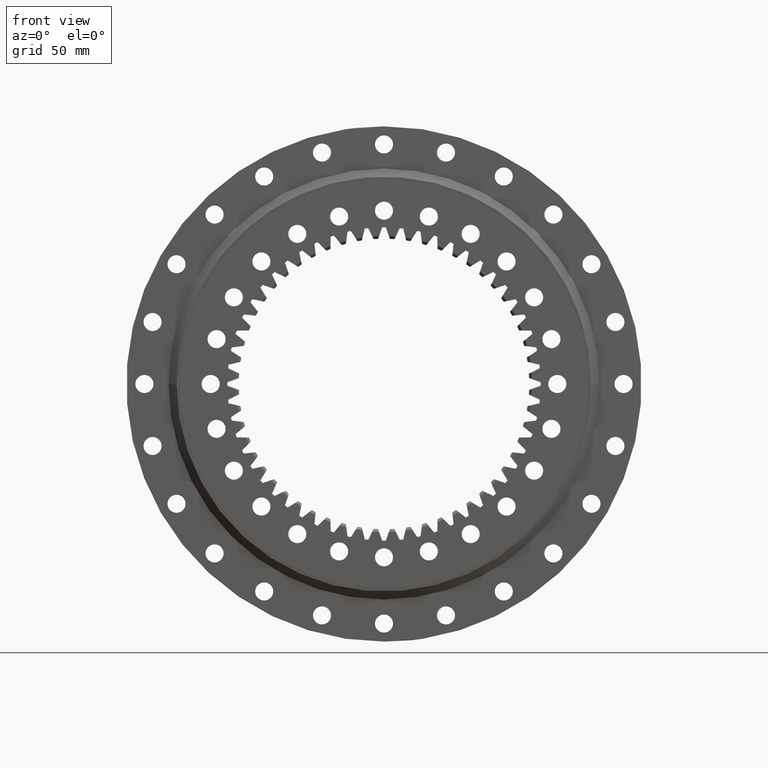
[diagram: clean part render]
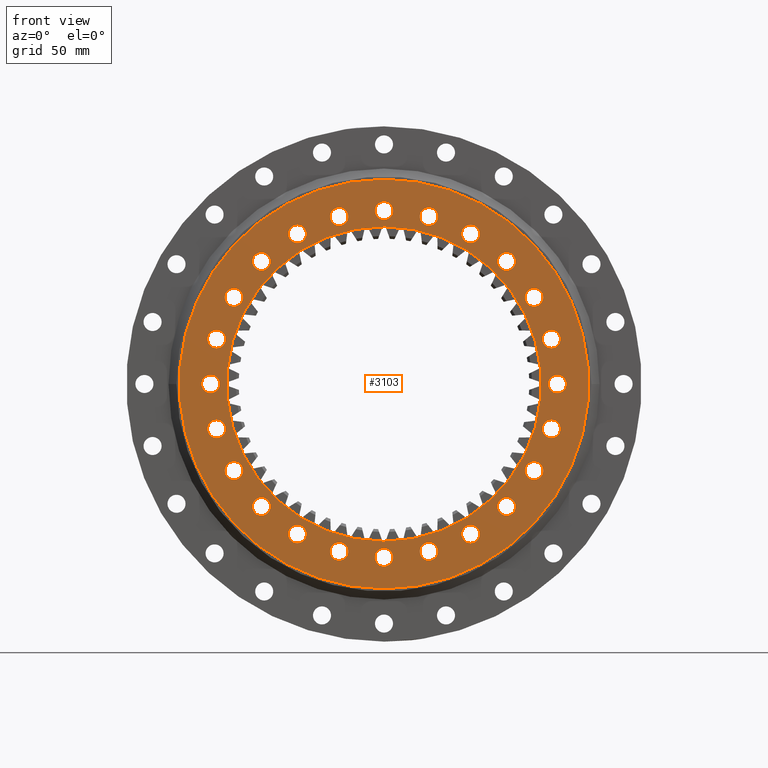
[diagram: same view with one face highlighted and labeled with its STEP entity id]
A machine part, front view. The second image highlights one B-rep face of the part: STEP entity #3103.
In plain terms, the highlighted planar face has unit normal (0, 1, -0).
Its self-contained STEP definition (entity closure, byte-faithful):
#16 = EDGE_LOOP ( 'NONE', ( #7282, #10143 ) ) ;
#21 = CIRCLE ( 'NONE', #3753, 6.749999999999996400 ) ;
#61 = EDGE_CURVE ( 'NONE', #10788, #13810, #14495, .T. ) ;
#133 = FACE_BOUND ( 'NONE', #3878, .T. ) ;
#212 = CIRCLE ( 'NONE', #14128, 6.750000000000006200 ) ;
#263 = CARTESIAN_POINT ( 'NONE',  ( 112.1502897900840300, -27.49999999999999600, 64.75000000000136400 ) ) ;
#291 = DIRECTION ( 'NONE',  ( -7.914688832368751900E-017, -1.000000000000000000, 6.617654413443253200E-017 ) ) ;
#323 = AXIS2_PLACEMENT_3D ( 'NONE', #11162, #3988, #13368 ) ;
#340 = CARTESIAN_POINT ( 'NONE',  ( -1.867010835527113100E-012, -27.49999999999998600, 129.5000000000000000 ) ) ;
#365 = EDGE_CURVE ( 'NONE', #13395, #9055, #8374, .T. ) ;
#374 = DIRECTION ( 'NONE',  ( 0.5000000000000003300, 0.0000000000000000000, 0.8660254037844384900 ) ) ;
#381 = CARTESIAN_POINT ( 'NONE',  ( 6.315972820090652200E-015, -27.49999999999998200, 152.9875000000000100 ) ) ;
#387 = VERTEX_POINT ( 'NONE', #12761 ) ;
#427 = EDGE_LOOP ( 'NONE', ( #2825, #1704 ) ) ;
#434 = DIRECTION ( 'NONE',  ( 5.551115123123066100E-017, 0.0000000000000000000, 1.000000000000000000 ) ) ;
#509 = CIRCLE ( 'NONE', #4277, 6.750000000000000900 ) ;
#611 = CARTESIAN_POINT ( 'NONE',  ( -112.1502897900849800, -27.49999999999997500, 64.74999999999970200 ) ) ;
#636 = VERTEX_POINT ( 'NONE', #799 ) ;
#673 = ORIENTED_EDGE ( 'NONE', *, *, #2461, .F. ) ;
#674 = DIRECTION ( 'NONE',  ( -0.8660254037844323800, 0.0000000000000000000, 0.5000000000000106600 ) ) ;
#712 = CARTESIAN_POINT ( 'NONE',  ( 64.74999999999850800, -27.49999999999998900, 105.4002897900856500 ) ) ;
#723 = CARTESIAN_POINT ( 'NONE',  ( -1.867010835527113100E-012, -27.49999999999998600, 129.5000000000000000 ) ) ;
#758 = CARTESIAN_POINT ( 'NONE',  ( -129.5000000000000000, -27.49999999999998200, -5.065739409939572700E-013 ) ) ;
#766 = CARTESIAN_POINT ( 'NONE',  ( 64.75000000000096600, -27.50000000000000400, -105.4002897900842600 ) ) ;
#799 = CARTESIAN_POINT ( 'NONE',  ( 125.0873945044339900, -27.50000000000000000, 26.76706634077788400 ) ) ;
#801 = ORIENTED_EDGE ( 'NONE', *, *, #3318, .T. ) ;
#804 = FACE_BOUND ( 'NONE', #11406, .T. ) ;
#809 = CARTESIAN_POINT ( 'NONE',  ( -112.1502897900844700, -27.49999999999998600, -58.00000000000056800 ) ) ;
#825 = AXIS2_PLACEMENT_3D ( 'NONE', #1667, #9325, #8384 ) ;
#875 = VERTEX_POINT ( 'NONE', #1010 ) ;
#919 = VERTEX_POINT ( 'NONE', #5189 ) ;
#1010 = CARTESIAN_POINT ( 'NONE',  ( -125.0873945044342000, -27.49999999999998600, -26.76706634077700300 ) ) ;
#1029 = AXIS2_PLACEMENT_3D ( 'NONE', #13795, #2947, #13224 ) ;
#1051 = EDGE_LOOP ( 'NONE', ( #8389, #4776 ) ) ;
#1124 = CIRCLE ( 'NONE', #13177, 6.750000000000005300 ) ;
#1133 = AXIS2_PLACEMENT_3D ( 'NONE', #4836, #4795, #12648 ) ;
#1158 = EDGE_CURVE ( 'NONE', #14050, #16801, #9244, .T. ) ;
#1180 = CARTESIAN_POINT ( 'NONE',  ( -64.74999999999928900, -27.49999999999999600, -112.1502897900852400 ) ) ;
#1219 = FACE_BOUND ( 'NONE', #12450, .T. ) ;
#1220 = DIRECTION ( 'NONE',  ( -7.914688832368751900E-017, -1.000000000000000000, 6.617654413443253200E-017 ) ) ;
#1232 = FACE_BOUND ( 'NONE', #2242, .T. ) ;
#1235 = FACE_BOUND ( 'NONE', #8619, .T. ) ;
#1242 = CARTESIAN_POINT ( 'NONE',  ( 9.605195951670322800E-013, -27.50000000000000000, -122.7500000000000000 ) ) ;
#1300 = VERTEX_POINT ( 'NONE', #7236 ) ;
#1381 = CARTESIAN_POINT ( 'NONE',  ( -125.0873945044344600, -27.49999999999997900, 26.76706634077601900 ) ) ;
#1382 = CIRCLE ( 'NONE', #3484, 6.750000000000006200 ) ;
#1390 = EDGE_CURVE ( 'NONE', #13701, #919, #13306, .T. ) ;
#1400 = CARTESIAN_POINT ( 'NONE',  ( 64.75000000000096600, -27.50000000000000400, -112.1502897900842600 ) ) ;
#1437 = FACE_BOUND ( 'NONE', #16276, .T. ) ;
#1451 = ORIENTED_EDGE ( 'NONE', *, *, #3627, .F. ) ;
#1475 = CIRCLE ( 'NONE', #14672, 6.750000000000005300 ) ;
#1476 = CARTESIAN_POINT ( 'NONE',  ( -33.51706634077657300, -27.49999999999998200, 131.8373945044343100 ) ) ;
#1508 = DIRECTION ( 'NONE',  ( -7.914688832368751900E-017, -1.000000000000000000, 6.617654413443253200E-017 ) ) ;
#1520 = CIRCLE ( 'NONE', #2773, 6.750000000000010700 ) ;
#1562 = AXIS2_PLACEMENT_3D ( 'NONE', #11358, #11294, #11233 ) ;
#1574 = FACE_BOUND ( 'NONE', #17077, .T. ) ;
#1575 = EDGE_LOOP ( 'NONE', ( #2508, #15514 ) ) ;
#1606 = FACE_BOUND ( 'NONE', #5129, .T. ) ;
#1621 = FACE_BOUND ( 'NONE', #12247, .T. ) ;
#1635 = FACE_BOUND ( 'NONE', #11949, .T. ) ;
#1667 = CARTESIAN_POINT ( 'NONE',  ( -33.51706634077657300, -27.49999999999998200, 125.0873945044343100 ) ) ;
#1698 = EDGE_CURVE ( 'NONE', #14318, #13509, #1382, .T. ) ;
#1704 = ORIENTED_EDGE ( 'NONE', *, *, #4379, .F. ) ;
#1764 = CARTESIAN_POINT ( 'NONE',  ( 64.74999999999850800, -27.49999999999998900, 112.1502897900856700 ) ) ;
#1768 = DIRECTION ( 'NONE',  ( -7.914688832368751900E-017, -1.000000000000000000, 6.617654413443253200E-017 ) ) ;
#1793 = DIRECTION ( 'NONE',  ( -7.914688832368751900E-017, -1.000000000000000000, 6.617654413443251900E-017 ) ) ;
#1799 = EDGE_CURVE ( 'NONE', #2644, #875, #12358, .T. ) ;
#1801 = AXIS2_PLACEMENT_3D ( 'NONE', #2539, #11291, #9648 ) ;
#1826 = DIRECTION ( 'NONE',  ( -0.4999999999999883400, 0.0000000000000000000, 0.8660254037844452600 ) ) ;
#1841 = FACE_BOUND ( 'NONE', #2375, .T. ) ;
#1852 = ORIENTED_EDGE ( 'NONE', *, *, #1698, .F. ) ;
#1872 = CARTESIAN_POINT ( 'NONE',  ( -91.57032816365737900, -27.49999999999998900, -91.57032816365841700 ) ) ;
#1873 = EDGE_CURVE ( 'NONE', #15023, #16355, #3602, .T. ) ;
#1911 = CARTESIAN_POINT ( 'NONE',  ( 33.51706634077744700, -27.50000000000000400, -118.3373945044340900 ) ) ;
#1921 = DIRECTION ( 'NONE',  ( -5.551115123125783900E-017, -6.617654413443253200E-017, -1.000000000000000000 ) ) ;
#1967 = AXIS2_PLACEMENT_3D ( 'NONE', #3493, #3571, #8070 ) ;
#1985 = FACE_BOUND ( 'NONE', #8158, .T. ) ;
#1996 = CIRCLE ( 'NONE', #11176, 6.750000000000006200 ) ;
#1997 = FACE_BOUND ( 'NONE', #12055, .T. ) ;
#2018 = DIRECTION ( 'NONE',  ( -0.7071067811865536800, 0.0000000000000000000, -0.7071067811865413600 ) ) ;
#2033 = EDGE_CURVE ( 'NONE', #1300, #11527, #3352, .T. ) ;
#2045 = DIRECTION ( 'NONE',  ( -7.914688832368751900E-017, -1.000000000000000000, 6.617654413443251900E-017 ) ) ;
#2050 = FACE_BOUND ( 'NONE', #16, .T. ) ;
#2156 = CARTESIAN_POINT ( 'NONE',  ( 125.0873945044347100, -27.50000000000000700, -33.51706634077515900 ) ) ;
#2174 = CARTESIAN_POINT ( 'NONE',  ( 112.1502897900840300, -27.49999999999999600, 71.50000000000136400 ) ) ;
#2187 = EDGE_CURVE ( 'NONE', #13551, #7697, #13191, .T. ) ;
#2189 = DIRECTION ( 'NONE',  ( 7.914688832368751900E-017, 1.000000000000000000, -6.617654413443253200E-017 ) ) ;
#2237 = EDGE_CURVE ( 'NONE', #10594, #5833, #6576, .T. ) ;
#2238 = FACE_BOUND ( 'NONE', #15553, .T. ) ;
#2242 = EDGE_LOOP ( 'NONE', ( #10924, #1451 ) ) ;
#2278 = CARTESIAN_POINT ( 'NONE',  ( -91.57032816365810400, -27.49999999999998200, 98.32032816365772000 ) ) ;
#2283 = EDGE_LOOP ( 'NONE', ( #11553, #673 ) ) ;
#2293 = CARTESIAN_POINT ( 'NONE',  ( -2.289083236774638300E-014, -27.50000000000000000, -117.5000000000000000 ) ) ;
#2344 = EDGE_CURVE ( 'NONE', #4325, #6566, #10047, .T. ) ;
#2350 = CIRCLE ( 'NONE', #9687, 6.749999999999992900 ) ;
#2375 = EDGE_LOOP ( 'NONE', ( #14757, #11989 ) ) ;
#2421 = FACE_BOUND ( 'NONE', #6764, .T. ) ;
#2450 = AXIS2_PLACEMENT_3D ( 'NONE', #381, #10149, #1921 ) ;
#2461 = EDGE_CURVE ( 'NONE', #5833, #10594, #7335, .T. ) ;
#2476 = ORIENTED_EDGE ( 'NONE', *, *, #10303, .F. ) ;
#2508 = ORIENTED_EDGE ( 'NONE', *, *, #16168, .F. ) ;
#2539 = CARTESIAN_POINT ( 'NONE',  ( 112.1502897900840300, -27.49999999999999600, 64.75000000000136400 ) ) ;
#2600 = EDGE_CURVE ( 'NONE', #13509, #14318, #212, .T. ) ;
#2609 = FACE_BOUND ( 'NONE', #1575, .T. ) ;
#2633 = VERTEX_POINT ( 'NONE', #15555 ) ;
#2639 = FACE_BOUND ( 'NONE', #6616, .T. ) ;
#2644 = VERTEX_POINT ( 'NONE', #8013 ) ;
#2709 = VERTEX_POINT ( 'NONE', #2278 ) ;
#2773 = AXIS2_PLACEMENT_3D ( 'NONE', #13053, #11398, #3417 ) ;
#2821 = FACE_BOUND ( 'NONE', #16986, .T. ) ;
#2825 = ORIENTED_EDGE ( 'NONE', *, *, #15468, .F. ) ;
#2841 = DIRECTION ( 'NONE',  ( -7.914688832368751900E-017, -1.000000000000000000, 6.617654413443253200E-017 ) ) ;
#2847 = EDGE_CURVE ( 'NONE', #16355, #15023, #9506, .T. ) ;
#2855 = FACE_BOUND ( 'NONE', #6030, .T. ) ;
#2868 = AXIS2_PLACEMENT_3D ( 'NONE', #13054, #12993, #13103 ) ;
#2947 = DIRECTION ( 'NONE',  ( -7.914688832368751900E-017, -1.000000000000000000, 6.617654413443253200E-017 ) ) ;
#2995 = AXIS2_PLACEMENT_3D ( 'NONE', #4658, #6434, #8379 ) ;
#3031 = ORIENTED_EDGE ( 'NONE', *, *, #13230, .F. ) ;
#3046 = FACE_BOUND ( 'NONE', #15910, .T. ) ;
#3080 = DIRECTION ( 'NONE',  ( -7.914688832368751900E-017, -1.000000000000000000, 6.617654413443253200E-017 ) ) ;
#3103 = ADVANCED_FACE ( 'NONE', ( #804, #133, #1235, #1232, #1219, #1621, #1606, #1574, #1437, #1997, #1985, #1841, #1635, #2609, #2421, #2238, #2050, #3046, #2855, #2821, #2639, #3594, #3579, #3445, #3233, #4016 ), #17131, .F. ) ;
#3180 = DIRECTION ( 'NONE',  ( 0.7071067811865434600, 0.0000000000000000000, -0.7071067811865515700 ) ) ;
#3233 = FACE_BOUND ( 'NONE', #8748, .T. ) ;
#3240 = CARTESIAN_POINT ( 'NONE',  ( 6.315972820090652200E-015, -27.49999999999998200, 152.9875000000000100 ) ) ;
#3318 = EDGE_CURVE ( 'NONE', #14499, #13909, #10035, .T. ) ;
#3352 = CIRCLE ( 'NONE', #7624, 6.750000000000006200 ) ;
#3410 = DIRECTION ( 'NONE',  ( 0.2588190451025146300, 0.0000000000000000000, -0.9659258262890698700 ) ) ;
#3417 = DIRECTION ( 'NONE',  ( -0.9659258262890656500, 0.0000000000000000000, 0.2588190451025310100 ) ) ;
#3429 = VERTEX_POINT ( 'NONE', #5451 ) ;
#3436 = CARTESIAN_POINT ( 'NONE',  ( 125.0873945044339900, -27.50000000000000000, 33.51706634077788000 ) ) ;
#3445 = FACE_BOUND ( 'NONE', #16720, .T. ) ;
#3484 = AXIS2_PLACEMENT_3D ( 'NONE', #9190, #15788, #4628 ) ;
#3493 = CARTESIAN_POINT ( 'NONE',  ( 91.57032816365675400, -27.49999999999999600, 91.57032816365908400 ) ) ;
#3530 = ORIENTED_EDGE ( 'NONE', *, *, #2847, .F. ) ;
#3571 = DIRECTION ( 'NONE',  ( -7.914688832368751900E-017, -1.000000000000000000, 6.617654413443253200E-017 ) ) ;
#3579 = FACE_BOUND ( 'NONE', #427, .T. ) ;
#3594 = FACE_BOUND ( 'NONE', #2283, .T. ) ;
#3602 = CIRCLE ( 'NONE', #14238, 6.749999999999992900 ) ;
#3627 = EDGE_CURVE ( 'NONE', #12312, #4428, #14523, .T. ) ;
#3709 = DIRECTION ( 'NONE',  ( 0.8660254037844362700, 0.0000000000000000000, -0.5000000000000043300 ) ) ;
#3722 = CARTESIAN_POINT ( 'NONE',  ( 125.0873945044339900, -27.50000000000000000, 40.26706634077788000 ) ) ;
#3753 = AXIS2_PLACEMENT_3D ( 'NONE', #15671, #16841, #12933 ) ;
#3783 = AXIS2_PLACEMENT_3D ( 'NONE', #611, #1220, #674 ) ;
#3878 = EDGE_LOOP ( 'NONE', ( #10873, #16391 ) ) ;
#3930 = CARTESIAN_POINT ( 'NONE',  ( 112.1502897900854500, -27.50000000000000700, -64.74999999999890600 ) ) ;
#3988 = DIRECTION ( 'NONE',  ( -7.914688832368751900E-017, -1.000000000000000000, 6.617654413443253200E-017 ) ) ;
#4016 = FACE_OUTER_BOUND ( 'NONE', #1051, .T. ) ;
#4070 = CARTESIAN_POINT ( 'NONE',  ( 112.1502897900854500, -27.50000000000000700, -71.49999999999890600 ) ) ;
#4093 = CARTESIAN_POINT ( 'NONE',  ( 64.75000000000096600, -27.50000000000000400, -112.1502897900842600 ) ) ;
#4094 = VERTEX_POINT ( 'NONE', #10075 ) ;
#4120 = CARTESIAN_POINT ( 'NONE',  ( -91.57032816365737900, -27.49999999999998900, -98.32032816365841700 ) ) ;
#4138 = EDGE_CURVE ( 'NONE', #10736, #11517, #6906, .T. ) ;
#4159 = CARTESIAN_POINT ( 'NONE',  ( -64.74999999999928900, -27.49999999999999600, -112.1502897900852400 ) ) ;
#4223 = ORIENTED_EDGE ( 'NONE', *, *, #2033, .F. ) ;
#4250 = CIRCLE ( 'NONE', #6975, 6.750000000000000900 ) ;
#4277 = AXIS2_PLACEMENT_3D ( 'NONE', #13441, #13698, #13460 ) ;
#4325 = VERTEX_POINT ( 'NONE', #10768 ) ;
#4363 = AXIS2_PLACEMENT_3D ( 'NONE', #14043, #5429, #3180 ) ;
#4379 = EDGE_CURVE ( 'NONE', #4094, #12728, #11087, .T. ) ;
#4409 = DIRECTION ( 'NONE',  ( -0.5000000000000066600, 0.0000000000000000000, -0.8660254037844348200 ) ) ;
#4428 = VERTEX_POINT ( 'NONE', #2174 ) ;
#4493 = CIRCLE ( 'NONE', #14002, 6.750000000000005300 ) ;
#4494 = EDGE_CURVE ( 'NONE', #5027, #7511, #4250, .T. ) ;
#4526 = DIRECTION ( 'NONE',  ( -7.914688832368751900E-017, -1.000000000000000000, 6.617654413443253200E-017 ) ) ;
#4546 = CIRCLE ( 'NONE', #2995, 117.5000000000000000 ) ;
#4547 = DIRECTION ( 'NONE',  ( -7.914688832368751900E-017, -1.000000000000000000, 6.617654413443253200E-017 ) ) ;
#4608 = DIRECTION ( 'NONE',  ( -7.914688832368753200E-017, -1.000000000000000000, 6.617654413443253200E-017 ) ) ;
#4628 = DIRECTION ( 'NONE',  ( -0.2588190451025281200, 0.0000000000000000000, -0.9659258262890663100 ) ) ;
#4651 = VERTEX_POINT ( 'NONE', #11183 ) ;
#4658 = CARTESIAN_POINT ( 'NONE',  ( -2.176539428901406400E-015, -27.49999999999999300, 2.569797720291901100E-015 ) ) ;
#4776 = ORIENTED_EDGE ( 'NONE', *, *, #13771, .T. ) ;
#4795 = DIRECTION ( 'NONE',  ( -7.914688832368751900E-017, -1.000000000000000000, 6.617654413443253200E-017 ) ) ;
#4836 = CARTESIAN_POINT ( 'NONE',  ( -64.75000000000018500, -27.49999999999998200, 112.1502897900847100 ) ) ;
#4951 = EDGE_CURVE ( 'NONE', #387, #16152, #12370, .T. ) ;
#4976 = AXIS2_PLACEMENT_3D ( 'NONE', #2156, #8330, #12239 ) ;
#5008 = CARTESIAN_POINT ( 'NONE',  ( -1.866636135256302500E-012, -27.49999999999998600, 136.2500000000000000 ) ) ;
#5027 = VERTEX_POINT ( 'NONE', #13811 ) ;
#5077 = CARTESIAN_POINT ( 'NONE',  ( 91.57032816365874300, -27.50000000000000400, -91.57032816365706700 ) ) ;
#5129 = EDGE_LOOP ( 'NONE', ( #16867, #14293 ) ) ;
#5131 = DIRECTION ( 'NONE',  ( -7.914688832368751900E-017, -1.000000000000000000, 6.617654413443253200E-017 ) ) ;
#5153 = AXIS2_PLACEMENT_3D ( 'NONE', #9673, #4547, #1826 ) ;
#5189 = CARTESIAN_POINT ( 'NONE',  ( 9.589435580359859200E-013, -27.50000000000000000, -136.2500000000000000 ) ) ;
#5208 = CIRCLE ( 'NONE', #9996, 6.750000000000006200 ) ;
#5363 = DIRECTION ( 'NONE',  ( 0.7071067811865434600, 0.0000000000000000000, -0.7071067811865515700 ) ) ;
#5404 = CARTESIAN_POINT ( 'NONE',  ( 33.51706634077744700, -27.50000000000000400, -125.0873945044341000 ) ) ;
#5429 = DIRECTION ( 'NONE',  ( -7.914688832368751900E-017, -1.000000000000000000, 6.617654413443253200E-017 ) ) ;
#5451 = CARTESIAN_POINT ( 'NONE',  ( -91.57032816365737900, -27.49999999999998900, -84.82032816365840200 ) ) ;
#5481 = AXIS2_PLACEMENT_3D ( 'NONE', #9957, #9930, #9912 ) ;
#5552 = DIRECTION ( 'NONE',  ( 0.4999999999999947800, 0.0000000000000000000, -0.8660254037844417100 ) ) ;
#5555 = DIRECTION ( 'NONE',  ( -0.8660254037844323800, 0.0000000000000000000, 0.5000000000000106600 ) ) ;
#5576 = DIRECTION ( 'NONE',  ( -0.2588190451025281200, 0.0000000000000000000, -0.9659258262890663100 ) ) ;
#5617 = CIRCLE ( 'NONE', #1562, 6.750000000000001800 ) ;
#5647 = CIRCLE ( 'NONE', #13649, 6.749999999999995600 ) ;
#5672 = VERTEX_POINT ( 'NONE', #15042 ) ;
#5833 = VERTEX_POINT ( 'NONE', #9154 ) ;
#5947 = EDGE_CURVE ( 'NONE', #13810, #10788, #2350, .T. ) ;
#6027 = AXIS2_PLACEMENT_3D ( 'NONE', #1180, #16682, #16838 ) ;
#6030 = EDGE_LOOP ( 'NONE', ( #13618, #16048 ) ) ;
#6331 = VERTEX_POINT ( 'NONE', #10264 ) ;
#6348 = DIRECTION ( 'NONE',  ( -7.914688832368751900E-017, -1.000000000000000000, 6.617654413443253200E-017 ) ) ;
#6371 = EDGE_CURVE ( 'NONE', #2633, #11313, #11264, .T. ) ;
#6380 = DIRECTION ( 'NONE',  ( 0.5000000000000003300, 0.0000000000000000000, 0.8660254037844384900 ) ) ;
#6405 = CARTESIAN_POINT ( 'NONE',  ( -112.1502897900844700, -27.49999999999998600, -71.50000000000058300 ) ) ;
#6434 = DIRECTION ( 'NONE',  ( 7.914688832368751900E-017, 1.000000000000000000, -6.617654413443253200E-017 ) ) ;
#6436 = VERTEX_POINT ( 'NONE', #1381 ) ;
#6552 = ORIENTED_EDGE ( 'NONE', *, *, #12050, .F. ) ;
#6566 = VERTEX_POINT ( 'NONE', #8136 ) ;
#6576 = CIRCLE ( 'NONE', #1133, 6.749999999999996400 ) ;
#6613 = DIRECTION ( 'NONE',  ( 0.7071067811865485700, 0.0000000000000000000, 0.7071067811865464600 ) ) ;
#6616 = EDGE_LOOP ( 'NONE', ( #13913, #11224 ) ) ;
#6627 = AXIS2_PLACEMENT_3D ( 'NONE', #10245, #10985, #15186 ) ;
#6643 = EDGE_CURVE ( 'NONE', #7864, #5672, #11024, .T. ) ;
#6754 = DIRECTION ( 'NONE',  ( -7.914688832368751900E-017, -1.000000000000000000, 6.617654413443253200E-017 ) ) ;
#6764 = EDGE_LOOP ( 'NONE', ( #8068, #6552 ) ) ;
#6795 = AXIS2_PLACEMENT_3D ( 'NONE', #8627, #8763, #8715 ) ;
#6829 = EDGE_CURVE ( 'NONE', #3429, #12649, #1124, .T. ) ;
#6870 = CIRCLE ( 'NONE', #8978, 6.750000000000005300 ) ;
#6906 = CIRCLE ( 'NONE', #16641, 152.9875000000000100 ) ;
#6951 = EDGE_CURVE ( 'NONE', #12516, #8277, #13126, .T. ) ;
#6959 = CARTESIAN_POINT ( 'NONE',  ( -112.1502897900849800, -27.49999999999997500, 57.99999999999969400 ) ) ;
#6975 = AXIS2_PLACEMENT_3D ( 'NONE', #13655, #10830, #5555 ) ;
#7004 = ORIENTED_EDGE ( 'NONE', *, *, #6371, .F. ) ;
#7154 = CARTESIAN_POINT ( 'NONE',  ( 91.57032816365675400, -27.49999999999999600, 91.57032816365908400 ) ) ;
#7236 = CARTESIAN_POINT ( 'NONE',  ( -129.5000000000000000, -27.49999999999998200, 6.749999999999494600 ) ) ;
#7282 = ORIENTED_EDGE ( 'NONE', *, *, #12126, .F. ) ;
#7335 = CIRCLE ( 'NONE', #5153, 6.749999999999996400 ) ;
#7435 = CIRCLE ( 'NONE', #16656, 6.750000000000001800 ) ;
#7511 = VERTEX_POINT ( 'NONE', #6959 ) ;
#7518 = CARTESIAN_POINT ( 'NONE',  ( 33.51706634077744700, -27.50000000000000400, -125.0873945044341000 ) ) ;
#7532 = CARTESIAN_POINT ( 'NONE',  ( -129.5000000000000000, -27.49999999999998200, -6.750000000000507100 ) ) ;
#7624 = AXIS2_PLACEMENT_3D ( 'NONE', #758, #6348, #8236 ) ;
#7697 = VERTEX_POINT ( 'NONE', #5008 ) ;
#7732 = CIRCLE ( 'NONE', #16638, 6.750000000000005300 ) ;
#7751 = CARTESIAN_POINT ( 'NONE',  ( -2.920872834774790900E-014, -27.50000000000000400, -152.9875000000000100 ) ) ;
#7777 = CIRCLE ( 'NONE', #4363, 6.750000000000005300 ) ;
#7811 = ORIENTED_EDGE ( 'NONE', *, *, #61, .F. ) ;
#7864 = VERTEX_POINT ( 'NONE', #1911 ) ;
#7985 = DIRECTION ( 'NONE',  ( -7.914688832368751900E-017, -1.000000000000000000, 6.617654413443253200E-017 ) ) ;
#8013 = CARTESIAN_POINT ( 'NONE',  ( -125.0873945044342000, -27.49999999999998600, -40.26706634077699900 ) ) ;
#8019 = DIRECTION ( 'NONE',  ( 0.2588190451025214600, 0.0000000000000000000, 0.9659258262890682000 ) ) ;
#8068 = ORIENTED_EDGE ( 'NONE', *, *, #6829, .F. ) ;
#8070 = DIRECTION ( 'NONE',  ( 0.7071067811865485700, 0.0000000000000000000, 0.7071067811865464600 ) ) ;
#8112 = VERTEX_POINT ( 'NONE', #11558 ) ;
#8136 = CARTESIAN_POINT ( 'NONE',  ( 129.5000000000000000, -27.50000000000000400, 6.750000000001415800 ) ) ;
#8144 = CARTESIAN_POINT ( 'NONE',  ( -1.866431367400065400E-012, -27.49999999999998600, 122.7500000000000000 ) ) ;
#8158 = EDGE_LOOP ( 'NONE', ( #16606, #11749 ) ) ;
#8236 = DIRECTION ( 'NONE',  ( -1.000000000000000000, 0.0000000000000000000, 1.052995516776065200E-014 ) ) ;
#8277 = VERTEX_POINT ( 'NONE', #809 ) ;
#8330 = DIRECTION ( 'NONE',  ( -7.914688832368753200E-017, -1.000000000000000000, 6.617654413443253200E-017 ) ) ;
#8374 = CIRCLE ( 'NONE', #4976, 6.750000000000000900 ) ;
#8379 = DIRECTION ( 'NONE',  ( -5.551115123125783900E-017, -5.905441620346577200E-017, -1.000000000000000000 ) ) ;
#8384 = DIRECTION ( 'NONE',  ( -0.2588190451025079200, 0.0000000000000000000, 0.9659258262890717500 ) ) ;
#8389 = ORIENTED_EDGE ( 'NONE', *, *, #4138, .T. ) ;
#8546 = CIRCLE ( 'NONE', #13235, 6.750000000000010700 ) ;
#8548 = CARTESIAN_POINT ( 'NONE',  ( -2.176539428901406400E-015, -27.49999999999999300, 9.736712001169828300E-016 ) ) ;
#8619 = EDGE_LOOP ( 'NONE', ( #2476, #7004 ) ) ;
#8627 = CARTESIAN_POINT ( 'NONE',  ( 9.583640899089384700E-013, -27.50000000000000000, -129.5000000000000000 ) ) ;
#8668 = CARTESIAN_POINT ( 'NONE',  ( -125.0873945044342000, -27.49999999999998600, -33.51706634077699900 ) ) ;
#8715 = DIRECTION ( 'NONE',  ( -7.038473828917530100E-015, 0.0000000000000000000, -1.000000000000000000 ) ) ;
#8748 = EDGE_LOOP ( 'NONE', ( #12881, #13907 ) ) ;
#8763 = DIRECTION ( 'NONE',  ( -7.914688832368751900E-017, -1.000000000000000000, 6.617654413443253200E-017 ) ) ;
#8955 = ORIENTED_EDGE ( 'NONE', *, *, #17040, .F. ) ;
#8978 = AXIS2_PLACEMENT_3D ( 'NONE', #1872, #2045, #2018 ) ;
#9055 = VERTEX_POINT ( 'NONE', #11571 ) ;
#9065 = VERTEX_POINT ( 'NONE', #15088 ) ;
#9119 = CIRCLE ( 'NONE', #9445, 6.749999999999987600 ) ;
#9154 = CARTESIAN_POINT ( 'NONE',  ( -64.75000000000018500, -27.49999999999998200, 105.4002897900847000 ) ) ;
#9190 = CARTESIAN_POINT ( 'NONE',  ( -33.51706634077557800, -27.49999999999999600, -125.0873945044346000 ) ) ;
#9213 = DIRECTION ( 'NONE',  ( 0.8660254037844398200, 0.0000000000000000000, 0.4999999999999978900 ) ) ;
#9244 = CIRCLE ( 'NONE', #14409, 6.750000000000003600 ) ;
#9265 = AXIS2_PLACEMENT_3D ( 'NONE', #12428, #16742, #9551 ) ;
#9304 = CARTESIAN_POINT ( 'NONE',  ( 4.543888061580609200E-015, -27.49999999999998600, 117.5000000000000000 ) ) ;
#9325 = DIRECTION ( 'NONE',  ( -7.914688832368751900E-017, -1.000000000000000000, 6.617654413443253200E-017 ) ) ;
#9331 = ORIENTED_EDGE ( 'NONE', *, *, #10964, .F. ) ;
#9361 = DIRECTION ( 'NONE',  ( 0.9659258262890689800, 0.0000000000000000000, 0.2588190451025185700 ) ) ;
#9374 = DIRECTION ( 'NONE',  ( -7.914688832368751900E-017, -1.000000000000000000, 6.617654413443253200E-017 ) ) ;
#9445 = AXIS2_PLACEMENT_3D ( 'NONE', #3436, #9374, #9361 ) ;
#9484 = ORIENTED_EDGE ( 'NONE', *, *, #13338, .F. ) ;
#9506 = CIRCLE ( 'NONE', #1029, 6.749999999999992900 ) ;
#9514 = CARTESIAN_POINT ( 'NONE',  ( -64.74999999999928900, -27.49999999999999600, -105.4002897900852200 ) ) ;
#9551 = DIRECTION ( 'NONE',  ( -0.8660254037844431500, 0.0000000000000000000, -0.4999999999999923900 ) ) ;
#9648 = DIRECTION ( 'NONE',  ( 0.8660254037844398200, 0.0000000000000000000, 0.4999999999999978900 ) ) ;
#9656 = DIRECTION ( 'NONE',  ( -7.914688832368751900E-017, -1.000000000000000000, 6.617654413443253200E-017 ) ) ;
#9662 = VERTEX_POINT ( 'NONE', #9514 ) ;
#9673 = CARTESIAN_POINT ( 'NONE',  ( -64.75000000000018500, -27.49999999999998200, 112.1502897900847100 ) ) ;
#9687 = AXIS2_PLACEMENT_3D ( 'NONE', #4093, #1793, #5552 ) ;
#9747 = AXIS2_PLACEMENT_3D ( 'NONE', #4159, #4526, #4409 ) ;
#9799 = DIRECTION ( 'NONE',  ( 0.2588190451025146300, 0.0000000000000000000, -0.9659258262890698700 ) ) ;
#9827 = CIRCLE ( 'NONE', #6795, 6.750000000000006200 ) ;
#9912 = DIRECTION ( 'NONE',  ( -0.8660254037844431500, 0.0000000000000000000, -0.4999999999999923900 ) ) ;
#9930 = DIRECTION ( 'NONE',  ( -7.914688832368751900E-017, -1.000000000000000000, 6.617654413443253200E-017 ) ) ;
#9957 = CARTESIAN_POINT ( 'NONE',  ( -112.1502897900844700, -27.49999999999998600, -64.75000000000056800 ) ) ;
#9968 = EDGE_CURVE ( 'NONE', #919, #13701, #9827, .T. ) ;
#9996 = AXIS2_PLACEMENT_3D ( 'NONE', #15743, #15701, #15957 ) ;
#10035 = CIRCLE ( 'NONE', #13120, 117.5000000000000000 ) ;
#10047 = CIRCLE ( 'NONE', #11763, 6.750000000000006200 ) ;
#10075 = CARTESIAN_POINT ( 'NONE',  ( -33.51706634077657300, -27.49999999999998200, 118.3373945044343100 ) ) ;
#10143 = ORIENTED_EDGE ( 'NONE', *, *, #1799, .F. ) ;
#10149 = DIRECTION ( 'NONE',  ( 7.914688832368751900E-017, 1.000000000000000000, -6.617654413443253200E-017 ) ) ;
#10178 = DIRECTION ( 'NONE',  ( -7.914688832368751900E-017, -1.000000000000000000, 6.617654413443253200E-017 ) ) ;
#10245 = CARTESIAN_POINT ( 'NONE',  ( -2.176539428901406400E-015, -27.49999999999999300, 9.736712001169828300E-016 ) ) ;
#10264 = CARTESIAN_POINT ( 'NONE',  ( -64.74999999999928900, -27.49999999999999600, -118.9002897900852400 ) ) ;
#10303 = EDGE_CURVE ( 'NONE', #11313, #2633, #5647, .T. ) ;
#10320 = DIRECTION ( 'NONE',  ( 5.551115123125783900E-017, 6.803392993454264000E-017, 1.000000000000000000 ) ) ;
#10452 = EDGE_CURVE ( 'NONE', #8112, #4651, #7777, .T. ) ;
#10594 = VERTEX_POINT ( 'NONE', #11344 ) ;
#10618 = AXIS2_PLACEMENT_3D ( 'NONE', #8668, #13937, #14115 ) ;
#10736 = VERTEX_POINT ( 'NONE', #3240 ) ;
#10758 = CARTESIAN_POINT ( 'NONE',  ( 129.5000000000000000, -27.50000000000000400, 1.414507317681722800E-012 ) ) ;
#10763 = DIRECTION ( 'NONE',  ( -7.914688832368751900E-017, -1.000000000000000000, 6.617654413443253200E-017 ) ) ;
#10768 = CARTESIAN_POINT ( 'NONE',  ( 129.5000000000000000, -27.50000000000000400, -6.749999999998586000 ) ) ;
#10788 = VERTEX_POINT ( 'NONE', #766 ) ;
#10805 = DIRECTION ( 'NONE',  ( 1.000000000000000000, 0.0000000000000000000, -3.546992490074380900E-015 ) ) ;
#10830 = DIRECTION ( 'NONE',  ( -7.914688832368751900E-017, -1.000000000000000000, 6.617654413443253200E-017 ) ) ;
#10840 = EDGE_CURVE ( 'NONE', #7697, #13551, #1996, .T. ) ;
#10873 = ORIENTED_EDGE ( 'NONE', *, *, #4951, .F. ) ;
#10875 = DIRECTION ( 'NONE',  ( -7.914688832368751900E-017, -1.000000000000000000, 6.617654413443253200E-017 ) ) ;
#10912 = ORIENTED_EDGE ( 'NONE', *, *, #2344, .F. ) ;
#10924 = ORIENTED_EDGE ( 'NONE', *, *, #15378, .F. ) ;
#10958 = ORIENTED_EDGE ( 'NONE', *, *, #16529, .F. ) ;
#10964 = EDGE_CURVE ( 'NONE', #8277, #12516, #14039, .T. ) ;
#10985 = DIRECTION ( 'NONE',  ( -7.914688832368751900E-017, -1.000000000000000000, 6.617654413443253200E-017 ) ) ;
#11024 = CIRCLE ( 'NONE', #16221, 6.750000000000009800 ) ;
#11028 = DIRECTION ( 'NONE',  ( 5.551115123123066100E-017, 0.0000000000000000000, 1.000000000000000000 ) ) ;
#11087 = CIRCLE ( 'NONE', #825, 6.749999999999996400 ) ;
#11097 = DIRECTION ( 'NONE',  ( -0.7071067811865392500, 0.0000000000000000000, 0.7071067811865557900 ) ) ;
#11162 = CARTESIAN_POINT ( 'NONE',  ( 9.583640899089384700E-013, -27.50000000000000000, -129.5000000000000000 ) ) ;
#11176 = AXIS2_PLACEMENT_3D ( 'NONE', #340, #291, #434 ) ;
#11183 = CARTESIAN_POINT ( 'NONE',  ( 91.57032816365874300, -27.50000000000000400, -84.82032816365706700 ) ) ;
#11224 = ORIENTED_EDGE ( 'NONE', *, *, #13200, .F. ) ;
#11233 = DIRECTION ( 'NONE',  ( -0.9659258262890709800, 0.0000000000000000000, -0.2588190451025108000 ) ) ;
#11264 = CIRCLE ( 'NONE', #1967, 6.749999999999995600 ) ;
#11291 = DIRECTION ( 'NONE',  ( -7.914688832368751900E-017, -1.000000000000000000, 6.617654413443253200E-017 ) ) ;
#11294 = DIRECTION ( 'NONE',  ( -7.914688832368751900E-017, -1.000000000000000000, 6.617654413443253200E-017 ) ) ;
#11304 = AXIS2_PLACEMENT_3D ( 'NONE', #15791, #15857, #15912 ) ;
#11313 = VERTEX_POINT ( 'NONE', #15535 ) ;
#11344 = CARTESIAN_POINT ( 'NONE',  ( -64.75000000000018500, -27.49999999999998200, 118.9002897900847100 ) ) ;
#11358 = CARTESIAN_POINT ( 'NONE',  ( -125.0873945044342000, -27.49999999999998600, -33.51706634077699900 ) ) ;
#11366 = DIRECTION ( 'NONE',  ( 1.000000000000000000, 0.0000000000000000000, -3.546992490074380900E-015 ) ) ;
#11398 = DIRECTION ( 'NONE',  ( -7.914688832368751900E-017, -1.000000000000000000, 6.617654413443253200E-017 ) ) ;
#11406 = EDGE_LOOP ( 'NONE', ( #801, #12325 ) ) ;
#11430 = DIRECTION ( 'NONE',  ( -7.914688832368751900E-017, -1.000000000000000000, 6.617654413443253200E-017 ) ) ;
#11464 = CIRCLE ( 'NONE', #6627, 152.9875000000000100 ) ;
#11497 = CIRCLE ( 'NONE', #9747, 6.749999999999998200 ) ;
#11517 = VERTEX_POINT ( 'NONE', #7751 ) ;
#11522 = CARTESIAN_POINT ( 'NONE',  ( 64.74999999999850800, -27.49999999999998900, 112.1502897900856700 ) ) ;
#11527 = VERTEX_POINT ( 'NONE', #7532 ) ;
#11553 = ORIENTED_EDGE ( 'NONE', *, *, #2237, .F. ) ;
#11558 = CARTESIAN_POINT ( 'NONE',  ( 91.57032816365874300, -27.50000000000000400, -98.32032816365706700 ) ) ;
#11565 = ORIENTED_EDGE ( 'NONE', *, *, #17111, .F. ) ;
#11571 = CARTESIAN_POINT ( 'NONE',  ( 125.0873945044347100, -27.50000000000000700, -26.76706634077515500 ) ) ;
#11614 = DIRECTION ( 'NONE',  ( -7.914688832368751900E-017, -1.000000000000000000, 6.617654413443253200E-017 ) ) ;
#11685 = DIRECTION ( 'NONE',  ( 0.4999999999999947800, 0.0000000000000000000, -0.8660254037844417100 ) ) ;
#11695 = DIRECTION ( 'NONE',  ( -7.914688832368751900E-017, -1.000000000000000000, 6.617654413443253200E-017 ) ) ;
#11715 = CARTESIAN_POINT ( 'NONE',  ( -91.57032816365810400, -27.49999999999998200, 91.57032816365772000 ) ) ;
#11749 = ORIENTED_EDGE ( 'NONE', *, *, #12621, .F. ) ;
#11763 = AXIS2_PLACEMENT_3D ( 'NONE', #14649, #11430, #11366 ) ;
#11780 = DIRECTION ( 'NONE',  ( -0.7071067811865392500, 0.0000000000000000000, 0.7071067811865557900 ) ) ;
#11909 = VERTEX_POINT ( 'NONE', #3722 ) ;
#11927 = AXIS2_PLACEMENT_3D ( 'NONE', #11522, #10178, #6380 ) ;
#11949 = EDGE_LOOP ( 'NONE', ( #1852, #12197 ) ) ;
#11989 = ORIENTED_EDGE ( 'NONE', *, *, #9968, .F. ) ;
#12005 = CARTESIAN_POINT ( 'NONE',  ( -125.0873945044344600, -27.49999999999997900, 33.51706634077601900 ) ) ;
#12050 = EDGE_CURVE ( 'NONE', #12649, #3429, #6870, .T. ) ;
#12055 = EDGE_LOOP ( 'NONE', ( #7811, #16060 ) ) ;
#12066 = CARTESIAN_POINT ( 'NONE',  ( 64.75000000000096600, -27.50000000000000400, -118.9002897900842700 ) ) ;
#12071 = CARTESIAN_POINT ( 'NONE',  ( -91.57032816365810400, -27.49999999999998200, 91.57032816365772000 ) ) ;
#12079 = DIRECTION ( 'NONE',  ( -7.914688832368751900E-017, -1.000000000000000000, 6.617654413443253200E-017 ) ) ;
#12126 = EDGE_CURVE ( 'NONE', #875, #2644, #5617, .T. ) ;
#12129 = CARTESIAN_POINT ( 'NONE',  ( -91.57032816365810400, -27.49999999999998200, 84.82032816365770600 ) ) ;
#12197 = ORIENTED_EDGE ( 'NONE', *, *, #2600, .F. ) ;
#12239 = DIRECTION ( 'NONE',  ( 0.9659258262890670900, 0.0000000000000000000, -0.2588190451025252400 ) ) ;
#12247 = EDGE_LOOP ( 'NONE', ( #10958, #10912 ) ) ;
#12312 = VERTEX_POINT ( 'NONE', #13456 ) ;
#12325 = ORIENTED_EDGE ( 'NONE', *, *, #14590, .T. ) ;
#12358 = CIRCLE ( 'NONE', #10618, 6.750000000000001800 ) ;
#12370 = CIRCLE ( 'NONE', #11927, 6.750000000000001800 ) ;
#12428 = CARTESIAN_POINT ( 'NONE',  ( -112.1502897900844700, -27.49999999999998600, -64.75000000000056800 ) ) ;
#12450 = EDGE_LOOP ( 'NONE', ( #3031, #14306 ) ) ;
#12516 = VERTEX_POINT ( 'NONE', #6405 ) ;
#12621 = EDGE_CURVE ( 'NONE', #5672, #7864, #14448, .T. ) ;
#12648 = DIRECTION ( 'NONE',  ( -0.4999999999999883400, 0.0000000000000000000, 0.8660254037844452600 ) ) ;
#12649 = VERTEX_POINT ( 'NONE', #4120 ) ;
#12728 = VERTEX_POINT ( 'NONE', #1476 ) ;
#12761 = CARTESIAN_POINT ( 'NONE',  ( 64.74999999999850800, -27.49999999999998900, 118.9002897900856700 ) ) ;
#12763 = CARTESIAN_POINT ( 'NONE',  ( -33.51706634077558500, -27.49999999999999600, -131.8373945044346000 ) ) ;
#12867 = ORIENTED_EDGE ( 'NONE', *, *, #15593, .F. ) ;
#12868 = CIRCLE ( 'NONE', #3783, 6.750000000000000900 ) ;
#12874 = EDGE_CURVE ( 'NONE', #6331, #9662, #11497, .T. ) ;
#12881 = ORIENTED_EDGE ( 'NONE', *, *, #10840, .F. ) ;
#12933 = DIRECTION ( 'NONE',  ( -0.2588190451025079200, 0.0000000000000000000, 0.9659258262890717500 ) ) ;
#12993 = DIRECTION ( 'NONE',  ( -7.914688832368751900E-017, -1.000000000000000000, 6.617654413443253200E-017 ) ) ;
#13053 = CARTESIAN_POINT ( 'NONE',  ( -125.0873945044344600, -27.49999999999997900, 33.51706634077601900 ) ) ;
#13054 = CARTESIAN_POINT ( 'NONE',  ( 125.0873945044339900, -27.50000000000000000, 33.51706634077788000 ) ) ;
#13103 = DIRECTION ( 'NONE',  ( 0.9659258262890689800, 0.0000000000000000000, 0.2588190451025185700 ) ) ;
#13120 = AXIS2_PLACEMENT_3D ( 'NONE', #17094, #2189, #17269 ) ;
#13126 = CIRCLE ( 'NONE', #9265, 6.749999999999998200 ) ;
#13177 = AXIS2_PLACEMENT_3D ( 'NONE', #14761, #13342, #13908 ) ;
#13191 = CIRCLE ( 'NONE', #15705, 6.750000000000006200 ) ;
#13200 = EDGE_CURVE ( 'NONE', #13447, #2709, #7732, .T. ) ;
#13224 = DIRECTION ( 'NONE',  ( 0.2588190451025214600, 0.0000000000000000000, 0.9659258262890682000 ) ) ;
#13230 = EDGE_CURVE ( 'NONE', #11909, #636, #14435, .T. ) ;
#13235 = AXIS2_PLACEMENT_3D ( 'NONE', #12005, #10875, #16122 ) ;
#13302 = DIRECTION ( 'NONE',  ( -7.914688832368751900E-017, -1.000000000000000000, 6.617654413443251900E-017 ) ) ;
#13306 = CIRCLE ( 'NONE', #323, 6.750000000000006200 ) ;
#13338 = EDGE_CURVE ( 'NONE', #11527, #1300, #5208, .T. ) ;
#13342 = DIRECTION ( 'NONE',  ( -7.914688832368751900E-017, -1.000000000000000000, 6.617654413443251900E-017 ) ) ;
#13368 = DIRECTION ( 'NONE',  ( -7.038473828917530100E-015, 0.0000000000000000000, -1.000000000000000000 ) ) ;
#13395 = VERTEX_POINT ( 'NONE', #17022 ) ;
#13441 = CARTESIAN_POINT ( 'NONE',  ( 125.0873945044347100, -27.50000000000000700, -33.51706634077515900 ) ) ;
#13447 = VERTEX_POINT ( 'NONE', #12129 ) ;
#13456 = CARTESIAN_POINT ( 'NONE',  ( 112.1502897900840300, -27.49999999999999600, 58.00000000000136400 ) ) ;
#13457 = EDGE_CURVE ( 'NONE', #9055, #13395, #509, .T. ) ;
#13460 = DIRECTION ( 'NONE',  ( 0.9659258262890670900, 0.0000000000000000000, -0.2588190451025252400 ) ) ;
#13509 = VERTEX_POINT ( 'NONE', #12763 ) ;
#13551 = VERTEX_POINT ( 'NONE', #8144 ) ;
#13588 = EDGE_CURVE ( 'NONE', #9065, #6436, #8546, .T. ) ;
#13596 = CARTESIAN_POINT ( 'NONE',  ( 33.51706634077471100, -27.49999999999998900, 118.3373945044347800 ) ) ;
#13618 = ORIENTED_EDGE ( 'NONE', *, *, #13588, .F. ) ;
#13649 = AXIS2_PLACEMENT_3D ( 'NONE', #7154, #6754, #6613 ) ;
#13655 = CARTESIAN_POINT ( 'NONE',  ( -112.1502897900849800, -27.49999999999997500, 64.74999999999970200 ) ) ;
#13677 = AXIS2_PLACEMENT_3D ( 'NONE', #5404, #9656, #3410 ) ;
#13698 = DIRECTION ( 'NONE',  ( -7.914688832368753200E-017, -1.000000000000000000, 6.617654413443253200E-017 ) ) ;
#13701 = VERTEX_POINT ( 'NONE', #1242 ) ;
#13771 = EDGE_CURVE ( 'NONE', #11517, #10736, #11464, .T. ) ;
#13795 = CARTESIAN_POINT ( 'NONE',  ( 33.51706634077471100, -27.49999999999998900, 125.0873945044347800 ) ) ;
#13810 = VERTEX_POINT ( 'NONE', #12066 ) ;
#13811 = CARTESIAN_POINT ( 'NONE',  ( -112.1502897900849800, -27.49999999999997500, 71.49999999999970200 ) ) ;
#13907 = ORIENTED_EDGE ( 'NONE', *, *, #2187, .F. ) ;
#13908 = DIRECTION ( 'NONE',  ( -0.7071067811865536800, 0.0000000000000000000, -0.7071067811865413600 ) ) ;
#13909 = VERTEX_POINT ( 'NONE', #2293 ) ;
#13913 = ORIENTED_EDGE ( 'NONE', *, *, #16510, .F. ) ;
#13937 = DIRECTION ( 'NONE',  ( -7.914688832368751900E-017, -1.000000000000000000, 6.617654413443253200E-017 ) ) ;
#14002 = AXIS2_PLACEMENT_3D ( 'NONE', #5077, #5131, #5363 ) ;
#14022 = DIRECTION ( 'NONE',  ( -7.914688832368751900E-017, -1.000000000000000000, 6.617654413443253200E-017 ) ) ;
#14039 = CIRCLE ( 'NONE', #5481, 6.749999999999998200 ) ;
#14043 = CARTESIAN_POINT ( 'NONE',  ( 91.57032816365874300, -27.50000000000000400, -91.57032816365706700 ) ) ;
#14044 = EDGE_CURVE ( 'NONE', #6436, #9065, #1520, .T. ) ;
#14050 = VERTEX_POINT ( 'NONE', #4070 ) ;
#14115 = DIRECTION ( 'NONE',  ( -0.9659258262890709800, 0.0000000000000000000, -0.2588190451025108000 ) ) ;
#14128 = AXIS2_PLACEMENT_3D ( 'NONE', #15503, #3080, #5576 ) ;
#14155 = ORIENTED_EDGE ( 'NONE', *, *, #1158, .F. ) ;
#14238 = AXIS2_PLACEMENT_3D ( 'NONE', #17183, #7985, #8019 ) ;
#14293 = ORIENTED_EDGE ( 'NONE', *, *, #365, .F. ) ;
#14306 = ORIENTED_EDGE ( 'NONE', *, *, #15306, .F. ) ;
#14318 = VERTEX_POINT ( 'NONE', #14829 ) ;
#14409 = AXIS2_PLACEMENT_3D ( 'NONE', #3930, #4608, #3709 ) ;
#14435 = CIRCLE ( 'NONE', #2868, 6.749999999999987600 ) ;
#14448 = CIRCLE ( 'NONE', #13677, 6.750000000000009800 ) ;
#14495 = CIRCLE ( 'NONE', #16418, 6.749999999999992900 ) ;
#14499 = VERTEX_POINT ( 'NONE', #9304 ) ;
#14523 = CIRCLE ( 'NONE', #1801, 6.750000000000007100 ) ;
#14565 = ORIENTED_EDGE ( 'NONE', *, *, #1873, .F. ) ;
#14568 = CIRCLE ( 'NONE', #14851, 6.750000000000007100 ) ;
#14590 = EDGE_CURVE ( 'NONE', #13909, #14499, #4546, .T. ) ;
#14649 = CARTESIAN_POINT ( 'NONE',  ( 129.5000000000000000, -27.50000000000000400, 1.414507317681722800E-012 ) ) ;
#14672 = AXIS2_PLACEMENT_3D ( 'NONE', #12071, #12079, #11097 ) ;
#14757 = ORIENTED_EDGE ( 'NONE', *, *, #1390, .F. ) ;
#14761 = CARTESIAN_POINT ( 'NONE',  ( -91.57032816365737900, -27.49999999999998900, -91.57032816365841700 ) ) ;
#14767 = CIRCLE ( 'NONE', #16487, 6.750000000000006200 ) ;
#14829 = CARTESIAN_POINT ( 'NONE',  ( -33.51706634077558500, -27.49999999999999600, -118.3373945044345800 ) ) ;
#14851 = AXIS2_PLACEMENT_3D ( 'NONE', #263, #14022, #9213 ) ;
#15023 = VERTEX_POINT ( 'NONE', #13596 ) ;
#15042 = CARTESIAN_POINT ( 'NONE',  ( 33.51706634077744700, -27.50000000000000400, -131.8373945044341200 ) ) ;
#15088 = CARTESIAN_POINT ( 'NONE',  ( -125.0873945044344600, -27.49999999999997900, 40.26706634077601900 ) ) ;
#15163 = CARTESIAN_POINT ( 'NONE',  ( 112.1502897900854500, -27.50000000000000700, -57.99999999999890600 ) ) ;
#15186 = DIRECTION ( 'NONE',  ( 5.551115123125783900E-017, 6.803392993454264000E-017, 1.000000000000000000 ) ) ;
#15306 = EDGE_CURVE ( 'NONE', #636, #11909, #9119, .T. ) ;
#15370 = ORIENTED_EDGE ( 'NONE', *, *, #10452, .F. ) ;
#15378 = EDGE_CURVE ( 'NONE', #4428, #12312, #14568, .T. ) ;
#15416 = ORIENTED_EDGE ( 'NONE', *, *, #6951, .F. ) ;
#15418 = EDGE_CURVE ( 'NONE', #16152, #387, #7435, .T. ) ;
#15468 = EDGE_CURVE ( 'NONE', #12728, #4094, #21, .T. ) ;
#15503 = CARTESIAN_POINT ( 'NONE',  ( -33.51706634077557800, -27.49999999999999600, -125.0873945044346000 ) ) ;
#15514 = ORIENTED_EDGE ( 'NONE', *, *, #12874, .F. ) ;
#15535 = CARTESIAN_POINT ( 'NONE',  ( 91.57032816365675400, -27.49999999999999600, 98.32032816365908400 ) ) ;
#15553 = EDGE_LOOP ( 'NONE', ( #9331, #15416 ) ) ;
#15555 = CARTESIAN_POINT ( 'NONE',  ( 91.57032816365675400, -27.49999999999999600, 84.82032816365907000 ) ) ;
#15592 = CIRCLE ( 'NONE', #11304, 6.750000000000003600 ) ;
#15593 = EDGE_CURVE ( 'NONE', #7511, #5027, #12868, .T. ) ;
#15671 = CARTESIAN_POINT ( 'NONE',  ( -33.51706634077657300, -27.49999999999998200, 125.0873945044343100 ) ) ;
#15701 = DIRECTION ( 'NONE',  ( -7.914688832368751900E-017, -1.000000000000000000, 6.617654413443253200E-017 ) ) ;
#15705 = AXIS2_PLACEMENT_3D ( 'NONE', #723, #2841, #11028 ) ;
#15743 = CARTESIAN_POINT ( 'NONE',  ( -129.5000000000000000, -27.49999999999998200, -5.065739409939572700E-013 ) ) ;
#15788 = DIRECTION ( 'NONE',  ( -7.914688832368751900E-017, -1.000000000000000000, 6.617654413443253200E-017 ) ) ;
#15791 = CARTESIAN_POINT ( 'NONE',  ( 112.1502897900854500, -27.50000000000000700, -64.74999999999890600 ) ) ;
#15796 = CARTESIAN_POINT ( 'NONE',  ( 33.51706634077471100, -27.49999999999998900, 131.8373945044348000 ) ) ;
#15831 = CIRCLE ( 'NONE', #6027, 6.749999999999998200 ) ;
#15857 = DIRECTION ( 'NONE',  ( -7.914688832368753200E-017, -1.000000000000000000, 6.617654413443253200E-017 ) ) ;
#15910 = EDGE_LOOP ( 'NONE', ( #4223, #9484 ) ) ;
#15912 = DIRECTION ( 'NONE',  ( 0.8660254037844362700, 0.0000000000000000000, -0.5000000000000043300 ) ) ;
#15957 = DIRECTION ( 'NONE',  ( -1.000000000000000000, 0.0000000000000000000, 1.052995516776065200E-014 ) ) ;
#16048 = ORIENTED_EDGE ( 'NONE', *, *, #14044, .F. ) ;
#16060 = ORIENTED_EDGE ( 'NONE', *, *, #5947, .F. ) ;
#16122 = DIRECTION ( 'NONE',  ( -0.9659258262890656500, 0.0000000000000000000, 0.2588190451025310100 ) ) ;
#16152 = VERTEX_POINT ( 'NONE', #712 ) ;
#16168 = EDGE_CURVE ( 'NONE', #9662, #6331, #15831, .T. ) ;
#16221 = AXIS2_PLACEMENT_3D ( 'NONE', #7518, #11614, #9799 ) ;
#16276 = EDGE_LOOP ( 'NONE', ( #11565, #15370 ) ) ;
#16355 = VERTEX_POINT ( 'NONE', #15796 ) ;
#16391 = ORIENTED_EDGE ( 'NONE', *, *, #15418, .F. ) ;
#16418 = AXIS2_PLACEMENT_3D ( 'NONE', #1400, #13302, #11685 ) ;
#16487 = AXIS2_PLACEMENT_3D ( 'NONE', #10758, #10763, #10805 ) ;
#16510 = EDGE_CURVE ( 'NONE', #2709, #13447, #1475, .T. ) ;
#16529 = EDGE_CURVE ( 'NONE', #6566, #4325, #14767, .T. ) ;
#16606 = ORIENTED_EDGE ( 'NONE', *, *, #6643, .F. ) ;
#16638 = AXIS2_PLACEMENT_3D ( 'NONE', #11715, #11695, #11780 ) ;
#16641 = AXIS2_PLACEMENT_3D ( 'NONE', #8548, #1768, #10320 ) ;
#16656 = AXIS2_PLACEMENT_3D ( 'NONE', #1764, #1508, #374 ) ;
#16682 = DIRECTION ( 'NONE',  ( -7.914688832368751900E-017, -1.000000000000000000, 6.617654413443253200E-017 ) ) ;
#16694 = ORIENTED_EDGE ( 'NONE', *, *, #4494, .F. ) ;
#16720 = EDGE_LOOP ( 'NONE', ( #3530, #14565 ) ) ;
#16742 = DIRECTION ( 'NONE',  ( -7.914688832368751900E-017, -1.000000000000000000, 6.617654413443253200E-017 ) ) ;
#16801 = VERTEX_POINT ( 'NONE', #15163 ) ;
#16838 = DIRECTION ( 'NONE',  ( -0.5000000000000066600, 0.0000000000000000000, -0.8660254037844348200 ) ) ;
#16841 = DIRECTION ( 'NONE',  ( -7.914688832368751900E-017, -1.000000000000000000, 6.617654413443253200E-017 ) ) ;
#16867 = ORIENTED_EDGE ( 'NONE', *, *, #13457, .F. ) ;
#16986 = EDGE_LOOP ( 'NONE', ( #16694, #12867 ) ) ;
#17022 = CARTESIAN_POINT ( 'NONE',  ( 125.0873945044347100, -27.50000000000000700, -40.26706634077515200 ) ) ;
#17040 = EDGE_CURVE ( 'NONE', #16801, #14050, #15592, .T. ) ;
#17077 = EDGE_LOOP ( 'NONE', ( #8955, #14155 ) ) ;
#17094 = CARTESIAN_POINT ( 'NONE',  ( -2.176539428901406400E-015, -27.49999999999999300, 2.569797720291901100E-015 ) ) ;
#17111 = EDGE_CURVE ( 'NONE', #4651, #8112, #4493, .T. ) ;
#17131 = PLANE ( 'NONE',  #2450 ) ;
#17183 = CARTESIAN_POINT ( 'NONE',  ( 33.51706634077471100, -27.49999999999998900, 125.0873945044347800 ) ) ;
#17269 = DIRECTION ( 'NONE',  ( -5.551115123125783900E-017, -5.905441620346577200E-017, -1.000000000000000000 ) ) ;